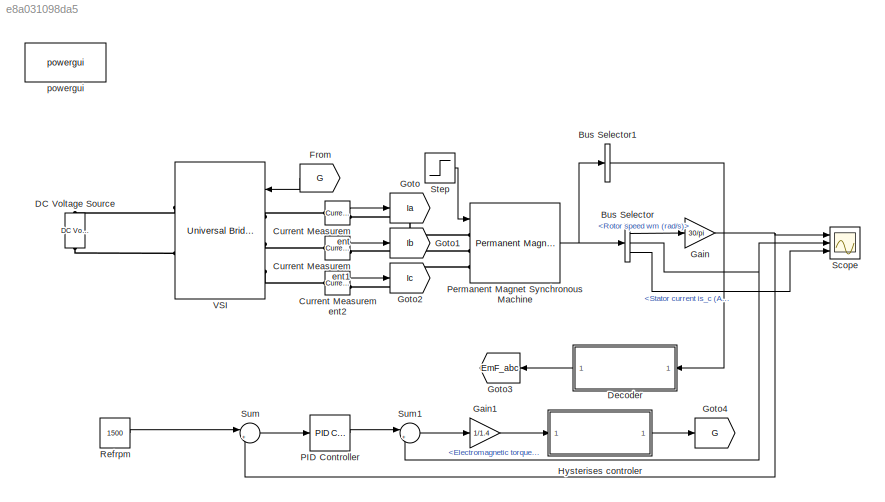
MODEL slx_e8a031098da5
KIND model
CONFIG AbsTol = auto
CONFIG EnableMultiTasking = off
CONFIG FixedStep = auto
CONFIG MaxStep = auto
CONFIG MinStep = auto
CONFIG RelTol = 1e-3
CONFIG SampleTimeConstraint = Unconstrained
CONFIG SolverName = VariableStepAuto
CONFIG StartTime = 0.0
CONFIG StopTime = 1
BLOCK [BusSelector] Bus Selector
  OutputSignals = Rotor speed wm (rad/s),Electromagnetic torque Te (N*m),Stator current is_c (A)
  Ports = [1, 3]
BLOCK [BusSelector] Bus Selector1
  OutputAsBus = on
  OutputSignals = Hall effect signal h_a,Hall effect signal h_b,Hall effect signal h_c
  Ports = [1, 1]
BLOCK [Reference] Current Measurement  REF=spsCurrentMeasurementLib/Current Measurement
  Ports = [0, 1, 0, 0, 0, 1, 1]
  SourceBlock = spsCurrentMeasurementLib/Current Measurement
  SourceProductBaseCode = PS
  SourceType = Current Measurement
  UserDataPersistent = on
BLOCK [Reference] Current Measurement1  REF=spsCurrentMeasurementLib/Current Measurement
  Ports = [0, 1, 0, 0, 0, 1, 1]
  SourceBlock = spsCurrentMeasurementLib/Current Measurement
  SourceProductBaseCode = PS
  SourceType = Current Measurement
  UserDataPersistent = on
BLOCK [Reference] Current Measurement2  REF=spsCurrentMeasurementLib/Current Measurement
  Ports = [0, 1, 0, 0, 0, 1, 1]
  SourceBlock = spsCurrentMeasurementLib/Current Measurement
  SourceProductBaseCode = PS
  SourceType = Current Measurement
  UserDataPersistent = on
BLOCK [Reference] DC Voltage Source  REF=spsDCVoltageSourceLib/DC Voltage Source
  Ports = [0, 0, 0, 0, 0, 1, 1]
  SourceBlock = spsDCVoltageSourceLib/DC Voltage Source
  SourceProductBaseCode = PS
  SourceType = DC Voltage Source
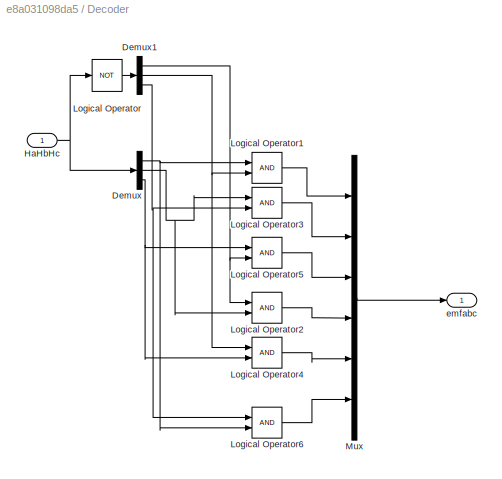
BLOCK [SubSystem] Decoder
  NameLocation = top
  Ports = [1, 1]
  RequestExecContextInheritance = off
BLOCK [Demux] Decoder/Demux
  Outputs = 3
  Ports = [1, 3]
BLOCK [Demux] Decoder/Demux1
  Outputs = 3
  Ports = [1, 3]
BLOCK [Inport] Decoder/HaHbHc
BLOCK [Logic] Decoder/Logical Operator
  AllPortsSameDT = off
  Operator = NOT
  OutDataTypeStr = boolean
  Ports = [1, 1]
BLOCK [Logic] Decoder/Logical Operator1
  AllPortsSameDT = off
  OutDataTypeStr = boolean
  Ports = [2, 1]
BLOCK [Logic] Decoder/Logical Operator2
  AllPortsSameDT = off
  OutDataTypeStr = boolean
  Ports = [2, 1]
BLOCK [Logic] Decoder/Logical Operator3
  AllPortsSameDT = off
  OutDataTypeStr = boolean
  Ports = [2, 1]
BLOCK [Logic] Decoder/Logical Operator4
  AllPortsSameDT = off
  OutDataTypeStr = boolean
  Ports = [2, 1]
BLOCK [Logic] Decoder/Logical Operator5
  AllPortsSameDT = off
  OutDataTypeStr = boolean
  Ports = [2, 1]
BLOCK [Logic] Decoder/Logical Operator6
  AllPortsSameDT = off
  OutDataTypeStr = boolean
  Ports = [2, 1]
BLOCK [Mux] Decoder/Mux
  DisplayOption = bar
  Inputs = 6
  Ports = [6, 1]
BLOCK [Outport] Decoder/emfabc
BLOCK [From] From
  GotoTag = G
  TagVisibility = global
BLOCK [Gain] Gain
  Gain = 30/pi
BLOCK [Gain] Gain1
  Gain = 1/1.4
BLOCK [Goto] Goto
  GotoTag = Ia
  TagVisibility = global
BLOCK [Goto] Goto1
  GotoTag = Ib
  TagVisibility = global
BLOCK [Goto] Goto2
  GotoTag = Ic
  TagVisibility = global
BLOCK [Goto] Goto3
  GotoTag = EmF_abc
  NameLocation = top
  TagVisibility = global
BLOCK [Goto] Goto4
  GotoTag = G
  TagVisibility = global
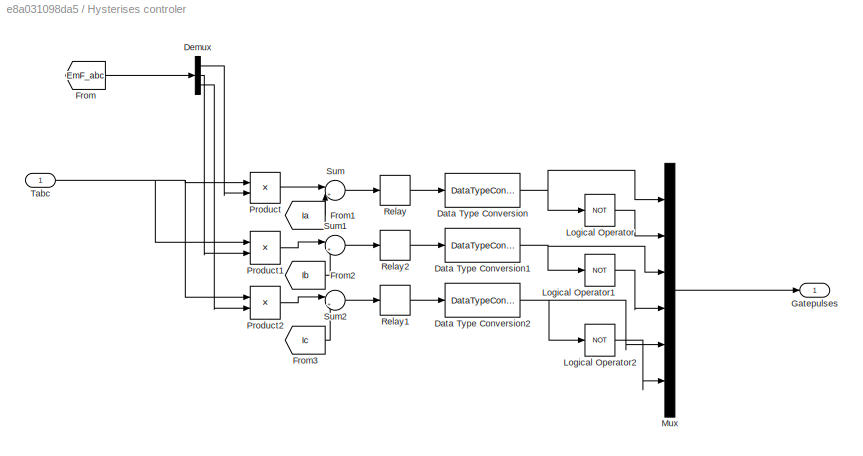
BLOCK [SubSystem] Hysterises controler
  Ports = [1, 1]
  RequestExecContextInheritance = off
BLOCK [DataTypeConversion] Hysterises controler/Data Type Conversion
  RndMeth = Floor
  SaturateOnIntegerOverflow = off
BLOCK [DataTypeConversion] Hysterises controler/Data Type Conversion1
  RndMeth = Floor
  SaturateOnIntegerOverflow = off
BLOCK [DataTypeConversion] Hysterises controler/Data Type Conversion2
  RndMeth = Floor
  SaturateOnIntegerOverflow = off
BLOCK [Demux] Hysterises controler/Demux
  Outputs = 3
  Ports = [1, 3]
BLOCK [From] Hysterises controler/From
  GotoTag = EmF_abc
  TagVisibility = global
BLOCK [From] Hysterises controler/From1
  GotoTag = Ia
  TagVisibility = global
BLOCK [From] Hysterises controler/From2
  GotoTag = Ib
  TagVisibility = global
BLOCK [From] Hysterises controler/From3
  GotoTag = Ic
  TagVisibility = global
BLOCK [Outport] Hysterises controler/Gatepulses
BLOCK [Logic] Hysterises controler/Logical Operator
  AllPortsSameDT = off
  Operator = NOT
  OutDataTypeStr = boolean
  Ports = [1, 1]
BLOCK [Logic] Hysterises controler/Logical Operator1
  AllPortsSameDT = off
  Operator = NOT
  OutDataTypeStr = boolean
  Ports = [1, 1]
BLOCK [Logic] Hysterises controler/Logical Operator2
  AllPortsSameDT = off
  Operator = NOT
  OutDataTypeStr = boolean
  Ports = [1, 1]
BLOCK [Mux] Hysterises controler/Mux
  DisplayOption = bar
  Inputs = 6
  Ports = [6, 1]
BLOCK [Product] Hysterises controler/Product
  Ports = [2, 1]
BLOCK [Product] Hysterises controler/Product1
  Ports = [2, 1]
BLOCK [Product] Hysterises controler/Product2
  Ports = [2, 1]
BLOCK [Relay] Hysterises controler/Relay
BLOCK [Relay] Hysterises controler/Relay1
BLOCK [Relay] Hysterises controler/Relay2
BLOCK [Sum] Hysterises controler/Sum
  Inputs = |+-
  Ports = [2, 1]
BLOCK [Sum] Hysterises controler/Sum1
  Inputs = |+-
  Ports = [2, 1]
BLOCK [Sum] Hysterises controler/Sum2
  Inputs = |+-
  Ports = [2, 1]
BLOCK [Inport] Hysterises controler/Tabc
BLOCK [Reference] PID Controller  REF=slpidlib/PID Controller
  Ports = [1, 1]
  SourceBlock = slpidlib/PID Controller
  SourceProductBaseCode = SL
  SourceType = PID 1dof
BLOCK [Reference] Permanent Magnet Synchronous Machine  REF=spsPermanentMagnetSynchronousMachineLib/Permanent Magnet
Synchronous Machine
  Ports = [1, 1, 0, 0, 0, 3]
  SourceBlock = spsPermanentMagnetSynchronousMachineLib/Permanent Magnet\nSynchronous Machine
  SourceProductBaseCode = PS
  SourceType = Permanent Magnet Synchronous Machine
BLOCK [Constant] Refrpm
  Value = 1500
BLOCK [Scope] Scope
  Floating = off
  NumInputPorts = 3
  Ports = [3]
  ScopeSpecificationString = Simulink.scopes.TimeScopeBlockCfg('CurrentConfiguration', extmgr.ConfigurationSet(extmgr.Configuration('Core','General UI',true),extmgr.Configuration('Core','Source UI',true),extmgr.Configuration('Sources','WiredSimulink',true),extmgr.Configuration('Visuals','Time Domain',true,'SerializedDisplays',{struct('MinYLimReal','-10','MaxYLimReal','10','YLabelReal','','MinYLimMag','0','MaxYLimMag','10','Le...<+2732ch>
BLOCK [Step] Step
  SampleTime = 0
BLOCK [Sum] Sum
  Inputs = |+-
  Ports = [2, 1]
BLOCK [Sum] Sum1
  Inputs = |+-
  Ports = [2, 1]
BLOCK [Reference] VSI  REF=spsUniversalBridgeLib/Universal Bridge
  Ports = [1, 0, 0, 0, 0, 3, 2]
  SourceBlock = spsUniversalBridgeLib/Universal Bridge
  SourceProductBaseCode = PS
  SourceType = Universal Bridge
BLOCK [Reference] powergui  REF=spspowerguiLib/powergui
  Ports = []
  Priority = 1
  SourceBlock = spspowerguiLib/powergui
  SourceProductBaseCode = PS
  SourceType = PSB option menu block
LINE Bus Selector1:1 -> Decoder:1
LINE Bus Selector:1 -> Gain:1
NET Bus Selector:2 -> Scope:2, Sum1:2
LINE Bus Selector:3 -> Scope:3
LINE Current Measurement1:1 -> Goto1:1
LINE Current Measurement2:1 -> Goto2:1
LINE Current Measurement:1 -> Goto:1
NET Decoder/Demux1:1 -> Decoder/Logical Operator2:1, Decoder/Logical Operator5:2
NET Decoder/Demux1:2 -> Decoder/Logical Operator1:2, Decoder/Logical Operator4:1
NET Decoder/Demux1:3 -> Decoder/Logical Operator3:2, Decoder/Logical Operator6:1
NET Decoder/Demux:1 -> Decoder/Logical Operator1:1, Decoder/Logical Operator6:2
NET Decoder/Demux:2 -> Decoder/Logical Operator2:2, Decoder/Logical Operator3:1
NET Decoder/Demux:3 -> Decoder/Logical Operator4:2, Decoder/Logical Operator5:1
NET Decoder/HaHbHc:1 -> Decoder/Demux:1, Decoder/Logical Operator:1
LINE Decoder/Logical Operator1:1 -> Decoder/Mux:1
LINE Decoder/Logical Operator2:1 -> Decoder/Mux:4
LINE Decoder/Logical Operator3:1 -> Decoder/Mux:2
LINE Decoder/Logical Operator4:1 -> Decoder/Mux:5
LINE Decoder/Logical Operator5:1 -> Decoder/Mux:3
LINE Decoder/Logical Operator6:1 -> Decoder/Mux:6
LINE Decoder/Logical Operator:1 -> Decoder/Demux1:1
LINE Decoder/Mux:1 -> Decoder/emfabc:1
LINE Decoder:1 -> Goto3:1
LINE From:1 -> VSI:1
LINE Gain1:1 -> Hysterises controler:1
NET Gain:1 -> Scope:1, Sum:2
NET Hysterises controler/Data Type Conversion1:1 -> Hysterises controler/Logical Operator1:1, Hysterises controler/Mux:3
NET Hysterises controler/Data Type Conversion2:1 -> Hysterises controler/Logical Operator2:1, Hysterises controler/Mux:5
NET Hysterises controler/Data Type Conversion:1 -> Hysterises controler/Logical Operator:1, Hysterises controler/Mux:1
LINE Hysterises controler/Demux:1 -> Hysterises controler/Product:2
LINE Hysterises controler/Demux:2 -> Hysterises controler/Product1:2
LINE Hysterises controler/Demux:3 -> Hysterises controler/Product2:2
LINE Hysterises controler/From1:1 -> Hysterises controler/Sum:2
LINE Hysterises controler/From2:1 -> Hysterises controler/Sum1:2
LINE Hysterises controler/From3:1 -> Hysterises controler/Sum2:2
LINE Hysterises controler/From:1 -> Hysterises controler/Demux:1
LINE Hysterises controler/Logical Operator1:1 -> Hysterises controler/Mux:4
LINE Hysterises controler/Logical Operator2:1 -> Hysterises controler/Mux:6
LINE Hysterises controler/Logical Operator:1 -> Hysterises controler/Mux:2
LINE Hysterises controler/Mux:1 -> Hysterises controler/Gatepulses:1
LINE Hysterises controler/Product1:1 -> Hysterises controler/Sum1:1
LINE Hysterises controler/Product2:1 -> Hysterises controler/Sum2:1
LINE Hysterises controler/Product:1 -> Hysterises controler/Sum:1
LINE Hysterises controler/Relay1:1 -> Hysterises controler/Data Type Conversion2:1
LINE Hysterises controler/Relay2:1 -> Hysterises controler/Data Type Conversion1:1
LINE Hysterises controler/Relay:1 -> Hysterises controler/Data Type Conversion:1
LINE Hysterises controler/Sum1:1 -> Hysterises controler/Relay2:1
LINE Hysterises controler/Sum2:1 -> Hysterises controler/Relay1:1
LINE Hysterises controler/Sum:1 -> Hysterises controler/Relay:1
NET Hysterises controler/Tabc:1 -> Hysterises controler/Product1:1, Hysterises controler/Product2:1, Hysterises controler/Product:1
LINE Hysterises controler:1 -> Goto4:1
LINE PID Controller:1 -> Sum1:1
NET Permanent Magnet Synchronous Machine:1 -> Bus Selector1:1, Bus Selector:1
LINE Refrpm:1 -> Sum:1
LINE Step:1 -> Permanent Magnet Synchronous Machine:1
LINE Sum1:1 -> Gain1:1
LINE Sum:1 -> PID Controller:1
PLINE Current Measurement1:LConn1 -- VSI:LConn2
PLINE Current Measurement1:RConn1 -- Permanent Magnet Synchronous Machine:LConn2
PLINE Current Measurement2:LConn1 -- VSI:LConn3
PLINE Current Measurement2:RConn1 -- Permanent Magnet Synchronous Machine:LConn3
PLINE Current Measurement:LConn1 -- VSI:LConn1
PLINE Current Measurement:RConn1 -- Permanent Magnet Synchronous Machine:LConn1
PLINE DC Voltage Source:LConn1 -- VSI:RConn2
PLINE DC Voltage Source:RConn1 -- VSI:RConn1
note: NET lines group one-source signal fan-out (src -> all destinations, sorted); 1:1 wires keep LINE
